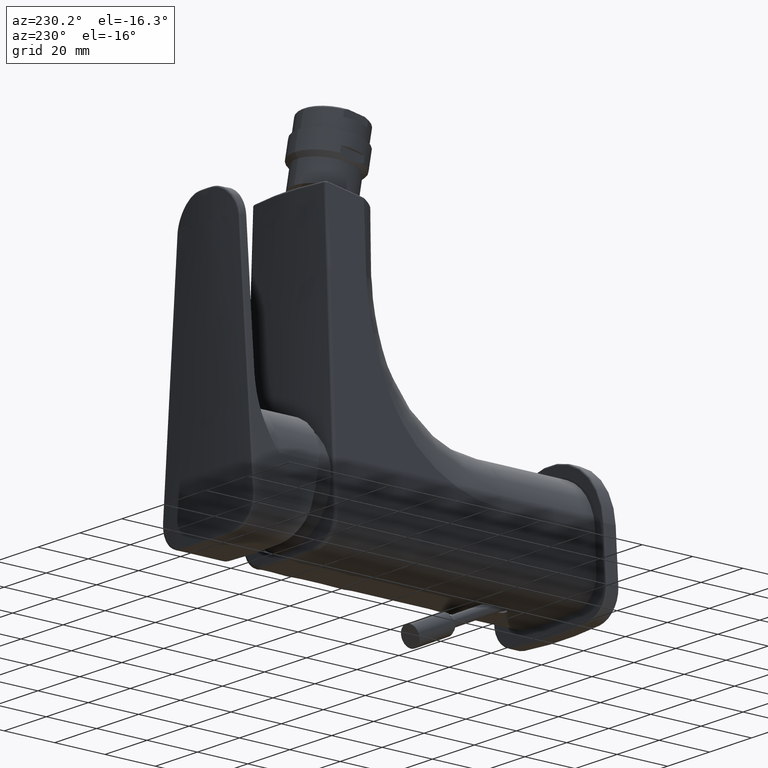
[diagram: clean part render]
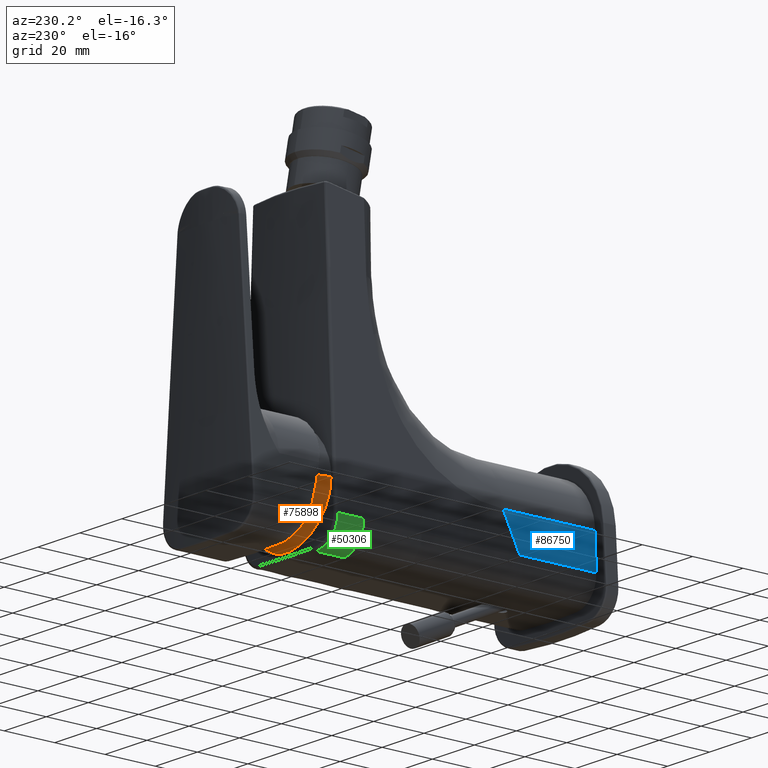
[diagram: same view with three faces highlighted in distinct colors, each labeled with its STEP entity id]
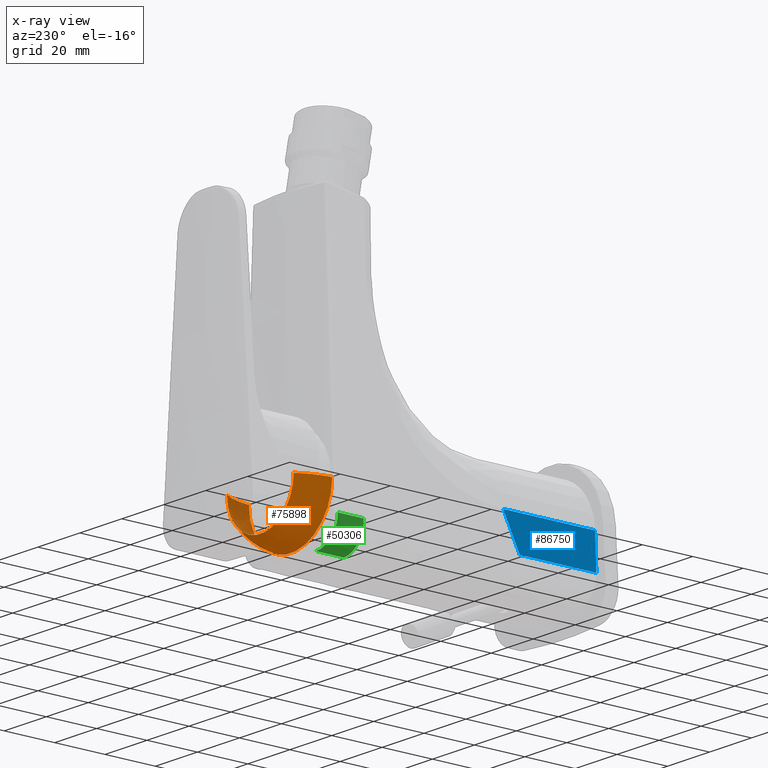
[diagram: x-ray of the same camera — body ghosted, the three highlighted faces saturated]
A machine part, auxiliary view with three faces highlighted in distinct colors.
The next image is the same camera in x-ray (body ghosted, the three faces saturated) — at least one of them is partly hidden behind the body in this view.
Their STEP definitions:

[orange] entity #75898 — the highlighted face is a freeform B-spline surface patch.
#24008=CARTESIAN_POINT('',(0.E0,1.15E2,0.E0));
#24009=DIRECTION('',(0.E0,1.E0,0.E0));
#24010=DIRECTION('',(1.E0,0.E0,0.E0));
#24011=AXIS2_PLACEMENT_3D('',#24008,#24009,#24010);
#24018=CARTESIAN_POINT('',(-9.982088067813E0,9.983037517768E1,0.E0));
#24019=DIRECTION('',(0.E0,0.E0,1.E0));
#24020=DIRECTION('',(9.944029355938E-1,1.056541607441E-1,0.E0));
#24021=AXIS2_PLACEMENT_3D('',#24018,#24019,#24020);
#24023=CARTESIAN_POINT('',(9.982088067813E0,9.983037517768E1,0.E0));
#24024=DIRECTION('',(0.E0,0.E0,-1.E0));
#24025=DIRECTION('',(-9.944029355938E-1,1.056541607441E-1,0.E0));
#24026=AXIS2_PLACEMENT_3D('',#24023,#24024,#24025);
#24043=CARTESIAN_POINT('',(0.E0,1.03E2,0.E0));
#24044=DIRECTION('',(0.E0,-1.E0,0.E0));
#24045=DIRECTION('',(-1.E0,0.E0,0.E0));
#24046=AXIS2_PLACEMENT_3D('',#24043,#24044,#24045);
#39727=CARTESIAN_POINT('',(1.59E1,1.15E2,0.E0));
#39728=CARTESIAN_POINT('',(-1.59E1,1.15E2,0.E0));
#39729=VERTEX_POINT('',#39727);
#39730=VERTEX_POINT('',#39728);
#39731=CARTESIAN_POINT('',(1.985E1,1.03E2,0.E0));
#39732=CARTESIAN_POINT('',(-1.985E1,1.03E2,0.E0));
#39733=VERTEX_POINT('',#39731);
#39734=VERTEX_POINT('',#39732);
#75860=CARTESIAN_POINT('',(-1.573922462640E1,1.152190805496E2,
9.902280802003E-1));
#75861=CARTESIAN_POINT('',(-1.801675336844E1,1.114001843335E2,
1.133518043166E0));
#75862=CARTESIAN_POINT('',(-1.940497972958E1,1.071744492704E2,
1.220857842750E0));
#75863=CARTESIAN_POINT('',(-1.983660190615E1,1.027467407913E2,
1.248013208369E0));
#75864=CARTESIAN_POINT('',(-1.634860959796E1,1.152190805496E2,
-8.695668677437E0));
#75865=CARTESIAN_POINT('',(-1.871431878221E1,1.114001843335E2,
-9.953966707625E0));
#75866=CARTESIAN_POINT('',(-2.015629393351E1,1.071744492704E2,
-1.072093946342E1));
#75867=CARTESIAN_POINT('',(-2.060462748399E1,1.027467407913E2,
-1.095940377983E1));
#75868=CARTESIAN_POINT('',(-9.705047451876E0,1.152190805496E2,
-1.577034379749E1));
#75869=CARTESIAN_POINT('',(-1.110940662707E1,1.114001843335E2,
-1.805237560802E1));
#75870=CARTESIAN_POINT('',(-1.196540830623E1,1.071744492704E2,
-1.944334673295E1));
#75871=CARTESIAN_POINT('',(-1.223155316433E1,1.027467407913E2,
-1.987582230127E1));
#75872=CARTESIAN_POINT('',(0.E0,1.152190805496E2,-1.577034379749E1));
#75873=CARTESIAN_POINT('',(0.E0,1.114001843335E2,-1.805237560802E1));
#75874=CARTESIAN_POINT('',(0.E0,1.071744492704E2,-1.944334673295E1));
#75875=CARTESIAN_POINT('',(0.E0,1.027467407913E2,-1.987582230126E1));
#75876=CARTESIAN_POINT('',(9.705047451876E0,1.152190805496E2,
-1.577034379749E1));
#75877=CARTESIAN_POINT('',(1.110940662707E1,1.114001843335E2,
-1.805237560802E1));
#75878=CARTESIAN_POINT('',(1.196540830623E1,1.071744492704E2,
-1.944334673295E1));
#75879=CARTESIAN_POINT('',(1.223155316433E1,1.027467407913E2,
-1.987582230126E1));
#75880=CARTESIAN_POINT('',(1.634860959796E1,1.152190805496E2,
-8.695668677437E0));
#75881=CARTESIAN_POINT('',(1.871431878221E1,1.114001843335E2,
-9.953966707625E0));
#75882=CARTESIAN_POINT('',(2.015629393351E1,1.071744492704E2,
-1.072093946342E1));
#75883=CARTESIAN_POINT('',(2.060462748399E1,1.027467407913E2,
-1.095940377983E1));
#75884=CARTESIAN_POINT('',(1.573922462640E1,1.152190805496E2,
9.902280802003E-1));
#75885=CARTESIAN_POINT('',(1.801675336844E1,1.114001843335E2,1.133518043166E0));
#75886=CARTESIAN_POINT('',(1.940497972958E1,1.071744492704E2,1.220857842750E0));
#75887=CARTESIAN_POINT('',(1.983660190615E1,1.027467407913E2,1.248013208369E0));
#75888=(BOUNDED_SURFACE()B_SPLINE_SURFACE(3,3,((#75860,#75861,#75862,#75863),(
#75864,#75865,#75866,#75867),(#75868,#75869,#75870,#75871),(#75872,#75873,
#75874,#75875),(#75876,#75877,#75878,#75879),(#75880,#75881,#75882,#75883),(
#75884,#75885,#75886,#75887)),.UNSPECIFIED.,.F.,.F.,.F.)B_SPLINE_SURFACE_WITH_KNOTS((4,3,4),(4,4),(0.E0,1.E0,2.E0),(0.E0,1.E0),.UNSPECIFIED.)GEOMETRIC_REPRESENTATION_ITEM()RATIONAL_B_SPLINE_SURFACE(((1.201829027942E0,1.182407300678E0,
1.182407300678E0,1.201829027942E0),(9.490820645799E-1,9.337447640315E-1,
9.337447640315E-1,9.490820645799E-1),(9.490820645799E-1,9.337447640315E-1,
9.337447640315E-1,9.490820645799E-1),(1.201829027942E0,1.182407300678E0,
1.182407300678E0,1.201829027942E0),(9.490820645799E-1,9.337447640315E-1,
9.337447640315E-1,9.490820645799E-1),(9.490820645799E-1,9.337447640315E-1,
9.337447640315E-1,9.490820645799E-1),(1.201829027942E0,1.182407300678E0,
1.182407300678E0,1.201829027942E0)))REPRESENTATION_ITEM('')SURFACE());
#75890=ORIENTED_EDGE('',*,*,#75889,.T.);
#75892=ORIENTED_EDGE('',*,*,#75891,.T.);
#75893=ORIENTED_EDGE('',*,*,#75842,.T.);
#75895=ORIENTED_EDGE('',*,*,#75894,.F.);
#75896=EDGE_LOOP('',(#75890,#75892,#75893,#75895));
#75897=FACE_OUTER_BOUND('',#75896,.F.);
#75898=ADVANCED_FACE('',(#75897),#75888,.T.);
#24012=CIRCLE('',#24011,1.59E1);
#24022=CIRCLE('',#24021,3.E1);
#24027=CIRCLE('',#24026,3.E1);
#24047=CIRCLE('',#24046,1.985E1);
#75842=EDGE_CURVE('',#39729,#39730,#24012,.T.);
#75889=EDGE_CURVE('',#39734,#39733,#24047,.T.);
#75891=EDGE_CURVE('',#39733,#39729,#24022,.T.);
#75894=EDGE_CURVE('',#39734,#39730,#24027,.T.);

[blue] entity #86750 — the highlighted face is a freeform B-spline surface patch.
#30351=DIRECTION('',(-4.294114667048E-2,0.E0,-9.990776035537E-1));
#30352=VECTOR('',#30351,1.359609219337E1);
#30353=CARTESIAN_POINT('',(-2.150590026979E1,0.E0,1.898585076064E0));
#30354=LINE('',#30353,#30352);
#30355=DIRECTION('',(-3.570356206765E-7,-9.999999999654E-1,-8.306864622615E-6));
#30356=VECTOR('',#30355,3.041443277137E1);
#30357=CARTESIAN_POINT('',(-2.208972119977E1,3.041443277032E1,
-1.168471348161E1));
#30358=LINE('',#30357,#30356);
#30359=DIRECTION('',(3.919400353858E-2,4.085460648708E-1,9.118957961112E-1));
#30360=VECTOR('',#30359,1.489566967585E1);
#30361=CARTESIAN_POINT('',(-2.208972119977E1,3.041443277032E1,
-1.168471348161E1));
#30362=LINE('',#30361,#30360);
#30363=DIRECTION('',(0.E0,1.E0,0.E0));
#30364=VECTOR('',#30363,3.65E1);
#30365=CARTESIAN_POINT('',(-2.150590026979E1,0.E0,1.898585076064E0));
#30366=LINE('',#30365,#30364);
#30418=CARTESIAN_POINT('',(-2.150590026979E1,3.65E1,1.898585076064E0));
#36379=VERTEX_POINT('',#30418);
#36381=CARTESIAN_POINT('',(-2.208972119977E1,3.041443277032E1,
-1.168471348161E1));
#36383=VERTEX_POINT('',#36381);
#44065=CARTESIAN_POINT('',(-2.150590026979E1,0.E0,1.898585076064E0));
#44066=CARTESIAN_POINT('',(-2.208973205881E1,0.E0,-1.168496613018E1));
#44067=VERTEX_POINT('',#44065);
#44068=VERTEX_POINT('',#44066);
#86725=CARTESIAN_POINT('',(-2.210140869459E1,-6.058521194139E-1,
-1.195663715431E1));
#86726=CARTESIAN_POINT('',(-2.210140869459E1,9.895584617093E0,
-1.195663715431E1));
#86727=CARTESIAN_POINT('',(-2.210140869459E1,2.039702135360E1,
-1.195663715431E1));
#86728=CARTESIAN_POINT('',(-2.210140869459E1,3.089845809011E1,
-1.195663715431E1));
#86729=CARTESIAN_POINT('',(-2.189901367439E1,-6.480461703320E-1,
-7.247672736144E0));
#86730=CARTESIAN_POINT('',(-2.189901367439E1,1.058475411542E1,
-7.247672736144E0));
#86731=CARTESIAN_POINT('',(-2.189901367439E1,2.181755440118E1,
-7.247672736144E0));
#86732=CARTESIAN_POINT('',(-2.189901367439E1,3.305035468693E1,
-7.247672736144E0));
#86733=CARTESIAN_POINT('',(-2.169661865420E1,-6.902402212502E-1,
-2.538708317977E0));
#86734=CARTESIAN_POINT('',(-2.169661865420E1,1.127392361375E1,
-2.538708317977E0));
#86735=CARTESIAN_POINT('',(-2.169661865420E1,2.323808744876E1,
-2.538708317977E0));
#86736=CARTESIAN_POINT('',(-2.169661865420E1,3.520225128376E1,
-2.538708317977E0));
#86737=CARTESIAN_POINT('',(-2.149422363401E1,-7.324342721684E-1,
2.170256100189E0));
#86738=CARTESIAN_POINT('',(-2.149422363401E1,1.196309311208E1,
2.170256100189E0));
#86739=CARTESIAN_POINT('',(-2.149422363401E1,2.465862049633E1,
2.170256100189E0));
#86740=CARTESIAN_POINT('',(-2.149422363401E1,3.735414788059E1,
2.170256100189E0));
#86741=B_SPLINE_SURFACE_WITH_KNOTS('',3,3,((#86725,#86726,#86727,#86728),
(#86729,#86730,#86731,#86732),(#86733,#86734,#86735,#86736),(#86737,#86738,
#86739,#86740)),.UNSPECIFIED.,.F.,.F.,.F.,(4,4),(4,4),(4.009570602398E-1,
1.011745939995E0),(-5.047549172246E-3,2.574250077845E-1),.UNSPECIFIED.);
#86742=ORIENTED_EDGE('',*,*,#50825,.T.);
#86744=ORIENTED_EDGE('',*,*,#86743,.F.);
#86746=ORIENTED_EDGE('',*,*,#86745,.T.);
#86747=ORIENTED_EDGE('',*,*,#86710,.F.);
#86748=EDGE_LOOP('',(#86742,#86744,#86746,#86747));
#86749=FACE_OUTER_BOUND('',#86748,.F.);
#86750=ADVANCED_FACE('',(#86749),#86741,.T.);
#50825=EDGE_CURVE('',#44067,#44068,#30354,.T.);
#86710=EDGE_CURVE('',#44067,#36379,#30366,.T.);
#86743=EDGE_CURVE('',#36383,#44068,#30358,.T.);
#86745=EDGE_CURVE('',#36383,#36379,#30362,.T.);

[green] entity #50306 — the highlighted face is a freeform B-spline surface patch.
#7275=CARTESIAN_POINT('',(-2.208968774582E1,1.026851569695E2,
-1.168411304850E1));
#7282=DIRECTION('',(-1.096944270296E-6,-9.999999999651E-1,-8.284391000215E-6));
#7283=VECTOR('',#7282,1.032140159737E1);
#7284=CARTESIAN_POINT('',(-2.208968774582E1,1.026851569695E2,
-1.168411304850E1));
#7285=LINE('',#7284,#7283);
#7296=CARTESIAN_POINT('',(-1.273646312654E1,1.035408840042E2,
-2.209316163711E1));
#7297=CARTESIAN_POINT('',(-1.290304303426E1,1.035300184302E2,
-2.208250829910E1));
#7298=CARTESIAN_POINT('',(-1.323572713473E1,1.035079150340E2,
-2.205291248754E1));
#7299=CARTESIAN_POINT('',(-1.373214919914E1,1.034737598320E2,
-2.198348529528E1));
#7300=CARTESIAN_POINT('',(-1.422456962016E1,1.034387007275E2,
-2.188927341567E1));
#7301=CARTESIAN_POINT('',(-1.471165874845E1,1.034028413459E2,
-2.177050309645E1));
#7302=CARTESIAN_POINT('',(-1.519218913221E1,1.033663075199E2,
-2.162747959361E1));
#7303=CARTESIAN_POINT('',(-1.566496900839E1,1.033292381340E2,
-2.146055412309E1));
#7304=CARTESIAN_POINT('',(-1.612881383460E1,1.032917702590E2,
-2.127014189461E1));
#7305=CARTESIAN_POINT('',(-1.658257125578E1,1.032540385082E2,
-2.105671068169E1));
#7306=CARTESIAN_POINT('',(-1.702508648438E1,1.032161989744E2,
-2.082079719121E1));
#7307=CARTESIAN_POINT('',(-1.745519022847E1,1.031784226329E2,
-2.056302548866E1));
#7308=CARTESIAN_POINT('',(-1.787175715129E1,1.031408774808E2,
-2.028408219467E1));
#7309=CARTESIAN_POINT('',(-1.827370342771E1,1.031037319948E2,
-1.998471620255E1));
#7310=CARTESIAN_POINT('',(-1.866000950374E1,1.030671559970E2,
-1.966571986551E1));
#7311=CARTESIAN_POINT('',(-1.902971654116E1,1.030313246956E2,
-1.932792305075E1));
#7312=CARTESIAN_POINT('',(-1.938190657806E1,1.029964110002E2,
-1.897220685349E1));
#7313=CARTESIAN_POINT('',(-1.971571209739E1,1.029625901894E2,
-1.859949579721E1));
#7314=CARTESIAN_POINT('',(-2.003033073986E1,1.029300241289E2,
-1.821073737500E1));
#7315=CARTESIAN_POINT('',(-2.032501685392E1,1.028988730287E2,
-1.780690258082E1));
#7316=CARTESIAN_POINT('',(-2.059906838724E1,1.028692966867E2,
-1.738900095723E1));
#7317=CARTESIAN_POINT('',(-2.085183983148E1,1.028414599510E2,
-1.695806039579E1));
#7318=CARTESIAN_POINT('',(-2.108272061629E1,1.028155038395E2,
-1.651516206085E1));
#7319=CARTESIAN_POINT('',(-2.129114310719E1,1.027915585063E2,
-1.606144366550E1));
#7320=CARTESIAN_POINT('',(-2.147660323994E1,1.027697555052E2,
-1.559806511872E1));
#7321=CARTESIAN_POINT('',(-2.163865835499E1,1.027502334869E2,
-1.512621327317E1));
#7322=CARTESIAN_POINT('',(-2.177694480314E1,1.027330973002E2,
-1.464703784854E1));
#7323=CARTESIAN_POINT('',(-2.189115438641E1,1.027184272011E2,
-1.416168645119E1));
#7324=CARTESIAN_POINT('',(-2.198102770328E1,1.027063082984E2,
-1.367132736689E1));
#7325=CARTESIAN_POINT('',(-2.204636134045E1,1.026968350093E2,
-1.317711738404E1));
#7326=CARTESIAN_POINT('',(-2.208699000898E1,1.026900616291E2,
-1.268027534956E1));
#7327=CARTESIAN_POINT('',(-2.210283080469E1,1.026860094727E2,
-1.218209919909E1));
#7328=CARTESIAN_POINT('',(-2.209680500685E1,1.026851293501E2,
-1.184997625109E1));
#7329=CARTESIAN_POINT('',(-2.208968774582E1,1.026851569695E2,
-1.168411304850E1));
#7331=CARTESIAN_POINT('',(-1.209892303228E1,9.236375537246E1,
-1.211361002173E1));
#7332=DIRECTION('',(-3.574082219405E-7,-9.999999999654E-1,-8.315533644381E-6));
#7333=DIRECTION('',(-9.990776035537E-1,0.E0,4.294114667048E-2));
#7334=AXIS2_PLACEMENT_3D('',#7331,#7332,#7333);
#7336=CARTESIAN_POINT('',(-2.208969906782E1,9.236375537246E1,
-1.168419855502E1));
#7492=CARTESIAN_POINT('',(-1.273646312654E1,1.035408840042E2,
-2.209316163711E1));
#7493=CARTESIAN_POINT('',(-1.273645394481E1,1.023016977275E2,
-2.209317255802E1));
#7494=CARTESIAN_POINT('',(-1.273644445048E1,9.982152064168E1,
-2.209321088656E1));
#7495=CARTESIAN_POINT('',(-1.273641319902E1,9.609583848592E1,
-2.209323698095E1));
#7496=CARTESIAN_POINT('',(-1.273639556380E1,9.360844028879E1,
-2.209326039778E1));
#7497=CARTESIAN_POINT('',(-1.273638633437E1,9.236383858650E1,
-2.209327136526E1));
#7499=CARTESIAN_POINT('',(-1.273638633437E1,9.236383858650E1,
-2.209327136526E1));
#36654=VERTEX_POINT('',#7336);
#36656=VERTEX_POINT('',#7499);
#36707=VERTEX_POINT('',#7275);
#36710=VERTEX_POINT('',#7296);
#50281=CARTESIAN_POINT('',(-2.207158576078E1,1.037643394718E2,
-1.137465336687E1));
#50282=CARTESIAN_POINT('',(-2.207158714584E1,9.988963027366E1,
-1.137468559208E1));
#50283=CARTESIAN_POINT('',(-2.207158853080E1,9.601492107556E1,
-1.137471781478E1));
#50284=CARTESIAN_POINT('',(-2.207158991565E1,9.214021187747E1,
-1.137475003496E1));
#50285=CARTESIAN_POINT('',(-2.251866197452E1,1.037643898179E2,
-1.740899137151E1));
#50286=CARTESIAN_POINT('',(-2.251866335958E1,9.988968061723E1,
-1.740902359672E1));
#50287=CARTESIAN_POINT('',(-2.251866474454E1,9.601497141654E1,
-1.740905581941E1));
#50288=CARTESIAN_POINT('',(-2.251866612939E1,9.214026221584E1,
-1.740908803959E1));
#50289=CARTESIAN_POINT('',(-1.847438810790E1,1.037644258043E2,
-2.190976477039E1));
#50290=CARTESIAN_POINT('',(-1.847438949297E1,9.988971660171E1,
-2.190979699560E1));
#50291=CARTESIAN_POINT('',(-1.847439087792E1,9.601500739916E1,
-2.190982921830E1));
#50292=CARTESIAN_POINT('',(-1.847439226277E1,9.214029819661E1,
-2.190986143847E1));
#50293=CARTESIAN_POINT('',(-1.242676380552E1,1.037644252923E2,
-2.210813965510E1));
#50294=CARTESIAN_POINT('',(-1.242676519059E1,9.988971608978E1,
-2.210817188031E1));
#50295=CARTESIAN_POINT('',(-1.242676657555E1,9.601500688726E1,
-2.210820410301E1));
#50296=CARTESIAN_POINT('',(-1.242676796040E1,9.214029768474E1,
-2.210823632318E1));
#50297=(BOUNDED_SURFACE()B_SPLINE_SURFACE(3,3,((#50281,#50282,#50283,#50284),(
#50285,#50286,#50287,#50288),(#50289,#50290,#50291,#50292),(#50293,#50294,
#50295,#50296)),.UNSPECIFIED.,.F.,.F.,.F.)B_SPLINE_SURFACE_WITH_KNOTS((4,4),(4,
4),(0.E0,1.E0),(9.226294968078E-1,9.998189378649E-1),.UNSPECIFIED.)GEOMETRIC_REPRESENTATION_ITEM()RATIONAL_B_SPLINE_SURFACE(((1.181750473294E0,1.181750473294E0,
1.181750473294E0,1.181750473294E0),(9.394165089019E-1,9.394165089019E-1,
9.394165089019E-1,9.394165089019E-1),(9.394165089019E-1,9.394165089019E-1,
9.394165089019E-1,9.394165089019E-1),(1.181750473294E0,1.181750473294E0,
1.181750473294E0,1.181750473294E0)))REPRESENTATION_ITEM('')SURFACE());
#50298=ORIENTED_EDGE('',*,*,#50267,.T.);
#50299=ORIENTED_EDGE('',*,*,#50160,.T.);
#50301=ORIENTED_EDGE('',*,*,#50300,.T.);
#50303=ORIENTED_EDGE('',*,*,#50302,.F.);
#50304=EDGE_LOOP('',(#50298,#50299,#50301,#50303));
#50305=FACE_OUTER_BOUND('',#50304,.F.);
#50306=ADVANCED_FACE('',(#50305),#50297,.T.);
#7330=B_SPLINE_CURVE_WITH_KNOTS('',3,(#7296,#7297,#7298,#7299,#7300,#7301,#7302,
#7303,#7304,#7305,#7306,#7307,#7308,#7309,#7310,#7311,#7312,#7313,#7314,#7315,
#7316,#7317,#7318,#7319,#7320,#7321,#7322,#7323,#7324,#7325,#7326,#7327,#7328,
#7329),.UNSPECIFIED.,.F.,.F.,(4,1,1,1,1,1,1,1,1,1,1,1,1,1,1,1,1,1,1,1,1,1,1,1,1,
1,1,1,1,1,1,4),(0.E0,3.225806451613E-2,6.451612903226E-2,9.677419354839E-2,
1.290322580645E-1,1.612903225806E-1,1.935483870968E-1,2.258064516129E-1,
2.580645161290E-1,2.903225806452E-1,3.225806451613E-1,3.548387096774E-1,
3.870967741935E-1,4.193548387097E-1,4.516129032258E-1,4.838709677419E-1,
5.161290322581E-1,5.483870967742E-1,5.806451612903E-1,6.129032258065E-1,
6.451612903226E-1,6.774193548387E-1,7.096774193548E-1,7.419354838710E-1,
7.741935483871E-1,8.064516129032E-1,8.387096774194E-1,8.709677419355E-1,
9.032258064516E-1,9.354838709677E-1,9.677419354839E-1,1.E0),.UNSPECIFIED.);
#7335=CIRCLE('',#7334,1.E1);
#7498=B_SPLINE_CURVE_WITH_KNOTS('',3,(#7492,#7493,#7494,#7495,#7496,#7497),
.UNSPECIFIED.,.F.,.F.,(4,1,1,4),(0.E0,3.333333333333E-1,6.666666666667E-1,1.E0),
.UNSPECIFIED.);
#50160=EDGE_CURVE('',#36707,#36654,#7285,.T.);
#50267=EDGE_CURVE('',#36710,#36707,#7330,.T.);
#50300=EDGE_CURVE('',#36654,#36656,#7335,.T.);
#50302=EDGE_CURVE('',#36710,#36656,#7498,.T.);